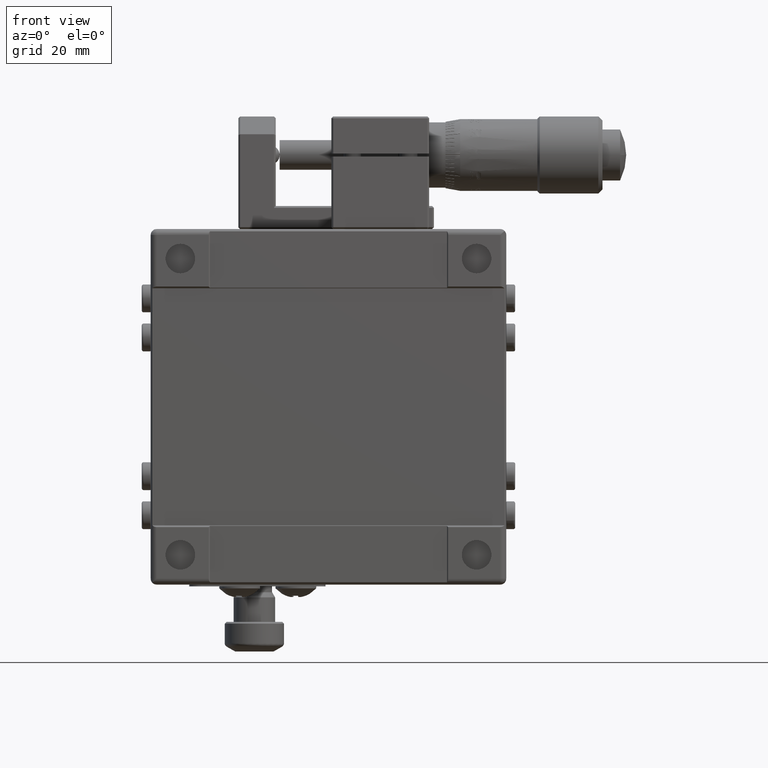
[diagram: clean part render]
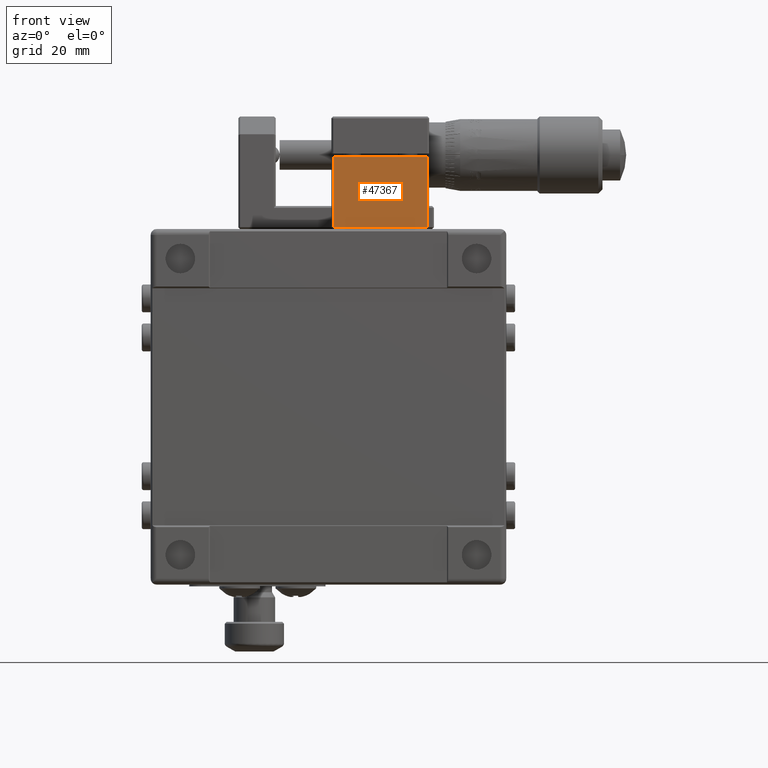
[diagram: same view with one face highlighted and labeled with its STEP entity id]
A machine part, front view. The second image highlights one B-rep face of the part: STEP entity #47367.
In plain terms, the highlighted planar face has unit normal (-0, 1, 0).
Its self-contained STEP definition (entity closure, byte-faithful):
#968 = CARTESIAN_POINT ( 'NONE',  ( 18.07353433835844925, -9.893634840871021296, 49.00000000000000000 ) ) ;
#2310 = LINE ( 'NONE', #6767, #12947 ) ;
#4730 = DIRECTION ( 'NONE',  ( 1.000000000000000000, 0.000000000000000000, 0.000000000000000000 ) ) ;
#4909 = ORIENTED_EDGE ( 'NONE', *, *, #7892, .T. ) ;
#5705 = DIRECTION ( 'NONE',  ( 0.000000000000000000, 0.000000000000000000, 1.000000000000000000 ) ) ;
#6281 = FACE_OUTER_BOUND ( 'NONE', #22322, .T. ) ;
#6767 = CARTESIAN_POINT ( 'NONE',  ( 1.873534338358459950, -9.893634840871021296, 42.25000000000000000 ) ) ;
#7892 = EDGE_CURVE ( 'NONE', #43578, #43781, #2310, .T. ) ;
#8321 = LINE ( 'NONE', #54063, #54828 ) ;
#8893 = CARTESIAN_POINT ( 'NONE',  ( 1.873534338358459950, -9.893634840871021296, 30.30000000000000071 ) ) ;
#9943 = EDGE_CURVE ( 'NONE', #46030, #19585, #47063, .T. ) ;
#12641 = AXIS2_PLACEMENT_3D ( 'NONE', #40257, #27474, #49154 ) ;
#12947 = VECTOR ( 'NONE', #44110, 1000.000000000000000 ) ;
#13477 = CARTESIAN_POINT ( 'NONE',  ( 2.173534338358459994, -9.893634840871021296, 42.25000000000000000 ) ) ;
#16958 = VECTOR ( 'NONE', #5705, 1000.000000000000000 ) ;
#19585 = VERTEX_POINT ( 'NONE', #25598 ) ;
#21987 = ORIENTED_EDGE ( 'NONE', *, *, #45813, .T. ) ;
#22322 = EDGE_LOOP ( 'NONE', ( #21987, #4909, #22951, #54998 ) ) ;
#22951 = ORIENTED_EDGE ( 'NONE', *, *, #33408, .T. ) ;
#23384 = VECTOR ( 'NONE', #4730, 1000.000000000000000 ) ;
#25598 = CARTESIAN_POINT ( 'NONE',  ( 18.07353433835844925, -9.893634840871021296, 30.30000000000000071 ) ) ;
#27474 = DIRECTION ( 'NONE',  ( -0.000000000000000000, 1.000000000000000000, 0.000000000000000000 ) ) ;
#28464 = DIRECTION ( 'NONE',  ( 0.000000000000000000, 0.000000000000000000, -1.000000000000000000 ) ) ;
#31092 = PLANE ( 'NONE',  #12641 ) ;
#33408 = EDGE_CURVE ( 'NONE', #43781, #46030, #8321, .T. ) ;
#36569 = CARTESIAN_POINT ( 'NONE',  ( 2.173534338358459994, -9.893634840871021296, 30.30000000000000071 ) ) ;
#40257 = CARTESIAN_POINT ( 'NONE',  ( 1.873534338358459950, -9.893634840871021296, 49.00000000000000000 ) ) ;
#43578 = VERTEX_POINT ( 'NONE', #52496 ) ;
#43781 = VERTEX_POINT ( 'NONE', #13477 ) ;
#44110 = DIRECTION ( 'NONE',  ( -1.000000000000000000, 0.000000000000000000, -1.540743955509784919E-33 ) ) ;
#44140 = LINE ( 'NONE', #968, #16958 ) ;
#45813 = EDGE_CURVE ( 'NONE', #19585, #43578, #44140, .T. ) ;
#46030 = VERTEX_POINT ( 'NONE', #36569 ) ;
#47063 = LINE ( 'NONE', #8893, #23384 ) ;
#47367 = ADVANCED_FACE ( 'NONE', ( #6281 ), #31092, .F. ) ;
#49154 = DIRECTION ( 'NONE',  ( 1.000000000000000000, 0.000000000000000000, 0.000000000000000000 ) ) ;
#52496 = CARTESIAN_POINT ( 'NONE',  ( 18.07353433835844925, -9.893634840871021296, 42.25000000000000000 ) ) ;
#54063 = CARTESIAN_POINT ( 'NONE',  ( 2.173534338358459994, -9.893634840871021296, 49.00000000000000000 ) ) ;
#54828 = VECTOR ( 'NONE', #28464, 1000.000000000000000 ) ;
#54998 = ORIENTED_EDGE ( 'NONE', *, *, #9943, .T. ) ;